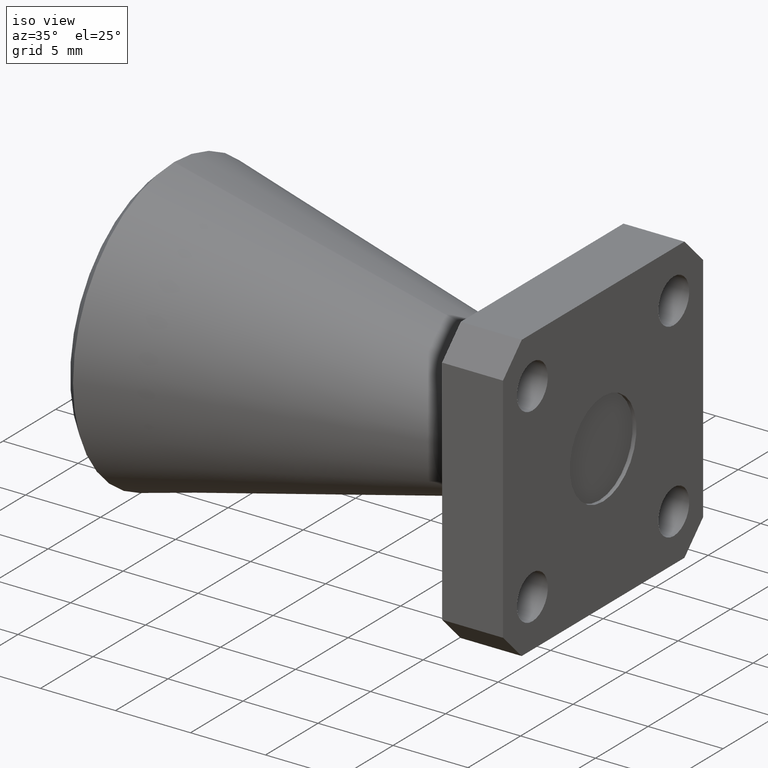
[diagram: clean part render]
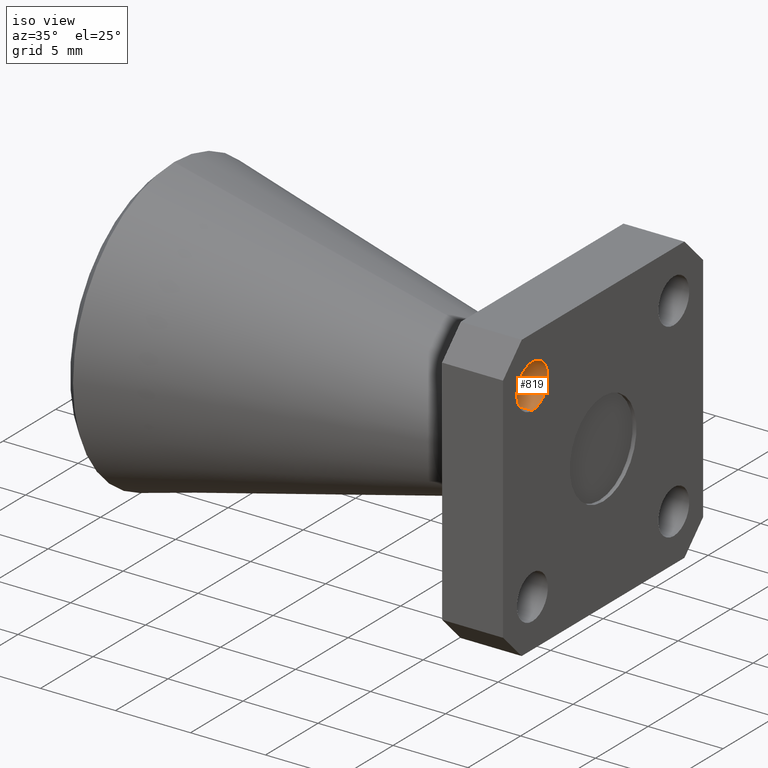
[diagram: same view with one face highlighted and labeled with its STEP entity id]
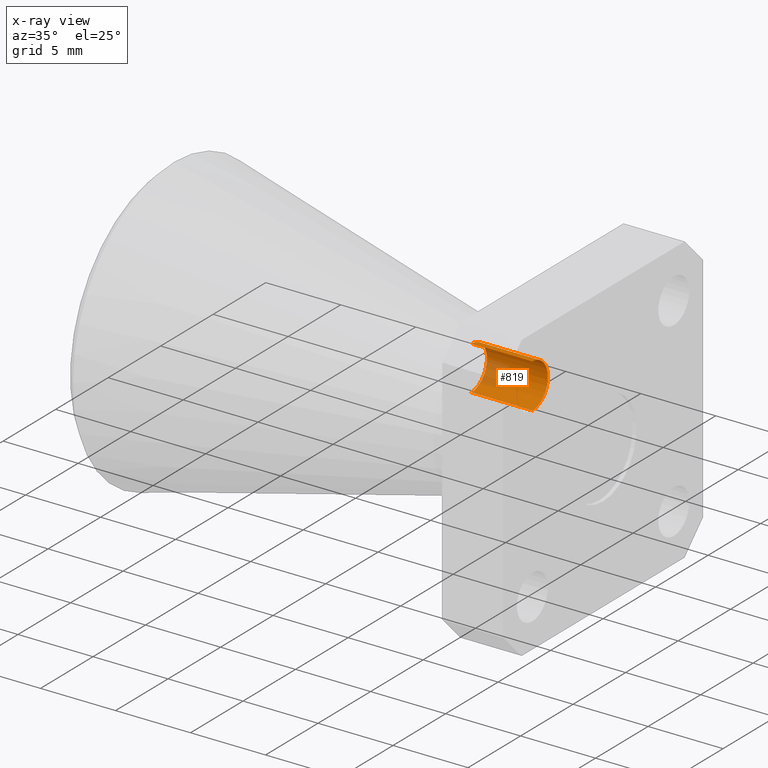
[diagram: x-ray of the same camera — body ghosted, the highlighted face saturated]
A machine part, iso view. The second image highlights one B-rep face of the part: STEP entity #819.
The next image is the same camera in x-ray: the body ghosted, the highlighted face saturated — about 19% of this face is hidden behind the body in this view.
In plain terms, the highlighted cylindrical surface (edge-blend (fillet) strip) has radius 1.4732 mm, axis along (1, -0, -0).
Its self-contained STEP definition (entity closure, byte-faithful):
#12 = CARTESIAN_POINT ( 'NONE',  ( 0.0000000000000000000, -0.2650000000000000700, 0.2500000000000000600 ) ) ;
#32 = ORIENTED_EDGE ( 'NONE', *, *, #408, .T. ) ;
#43 = CARTESIAN_POINT ( 'NONE',  ( -6.594723013408498700E-018, -0.2650000000000000700, 0.3080000000000001100 ) ) ;
#47 = CARTESIAN_POINT ( 'NONE',  ( 0.0000000000000000000, -0.2650000000000000700, 0.1920000000000000900 ) ) ;
#62 = VECTOR ( 'NONE', #598, 39.37007874015748100 ) ;
#177 = CARTESIAN_POINT ( 'NONE',  ( -6.594723013408498700E-018, -0.2650000000000000700, 0.2500000000000000600 ) ) ;
#218 = AXIS2_PLACEMENT_3D ( 'NONE', #896, #773, #490 ) ;
#247 = DIRECTION ( 'NONE',  ( 1.000000000000000000, -0.0000000000000000000, -0.0000000000000000000 ) ) ;
#255 = DIRECTION ( 'NONE',  ( 0.0000000000000000000, 0.0000000000000000000, -1.000000000000000000 ) ) ;
#261 = LINE ( 'NONE', #47, #62 ) ;
#272 = ORIENTED_EDGE ( 'NONE', *, *, #553, .F. ) ;
#281 = AXIS2_PLACEMENT_3D ( 'NONE', #177, #247, #255 ) ;
#295 = DIRECTION ( 'NONE',  ( 1.000000000000000000, -0.0000000000000000000, -0.0000000000000000000 ) ) ;
#331 = CIRCLE ( 'NONE', #218, 0.05799999999999996800 ) ;
#350 = LINE ( 'NONE', #550, #668 ) ;
#408 = EDGE_CURVE ( 'NONE', #610, #551, #261, .T. ) ;
#423 = VERTEX_POINT ( 'NONE', #43 ) ;
#430 = EDGE_CURVE ( 'NONE', #551, #423, #679, .T. ) ;
#436 = CARTESIAN_POINT ( 'NONE',  ( -0.1600000000000000000, -0.2650000000000000700, 0.3080000000000000500 ) ) ;
#490 = DIRECTION ( 'NONE',  ( 0.0000000000000000000, 0.0000000000000000000, 1.000000000000000000 ) ) ;
#546 = CYLINDRICAL_SURFACE ( 'NONE', #799, 0.05799999999999996800 ) ;
#550 = CARTESIAN_POINT ( 'NONE',  ( 0.0000000000000000000, -0.2650000000000000700, 0.3080000000000000500 ) ) ;
#551 = VERTEX_POINT ( 'NONE', #681 ) ;
#553 = EDGE_CURVE ( 'NONE', #783, #423, #350, .T. ) ;
#598 = DIRECTION ( 'NONE',  ( 1.000000000000000000, -0.0000000000000000000, -0.0000000000000000000 ) ) ;
#610 = VERTEX_POINT ( 'NONE', #749 ) ;
#614 = EDGE_CURVE ( 'NONE', #783, #610, #331, .T. ) ;
#643 = DIRECTION ( 'NONE',  ( 0.0000000000000000000, 0.0000000000000000000, -1.000000000000000000 ) ) ;
#668 = VECTOR ( 'NONE', #879, 39.37007874015748100 ) ;
#679 = CIRCLE ( 'NONE', #281, 0.05800000000000000300 ) ;
#681 = CARTESIAN_POINT ( 'NONE',  ( -6.594723013408498700E-018, -0.2650000000000000700, 0.1920000000000000600 ) ) ;
#749 = CARTESIAN_POINT ( 'NONE',  ( -0.1600000000000000000, -0.2650000000000000700, 0.1920000000000000900 ) ) ;
#773 = DIRECTION ( 'NONE',  ( -1.000000000000000000, 0.0000000000000000000, 0.0000000000000000000 ) ) ;
#778 = FACE_OUTER_BOUND ( 'NONE', #791, .T. ) ;
#783 = VERTEX_POINT ( 'NONE', #436 ) ;
#791 = EDGE_LOOP ( 'NONE', ( #272, #867, #32, #796 ) ) ;
#796 = ORIENTED_EDGE ( 'NONE', *, *, #430, .T. ) ;
#799 = AXIS2_PLACEMENT_3D ( 'NONE', #12, #295, #643 ) ;
#819 = ADVANCED_FACE ( 'NONE', ( #778 ), #546, .F. ) ;
#867 = ORIENTED_EDGE ( 'NONE', *, *, #614, .T. ) ;
#879 = DIRECTION ( 'NONE',  ( 1.000000000000000000, -0.0000000000000000000, -0.0000000000000000000 ) ) ;
#896 = CARTESIAN_POINT ( 'NONE',  ( -0.1600000000000000000, -0.2650000000000000700, 0.2500000000000000600 ) ) ;